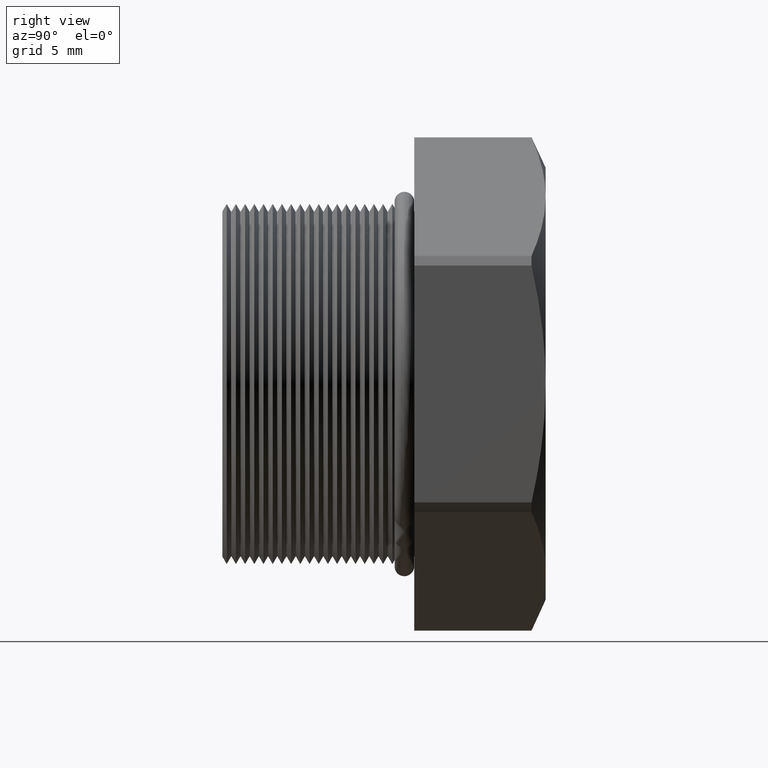
[diagram: clean part render]
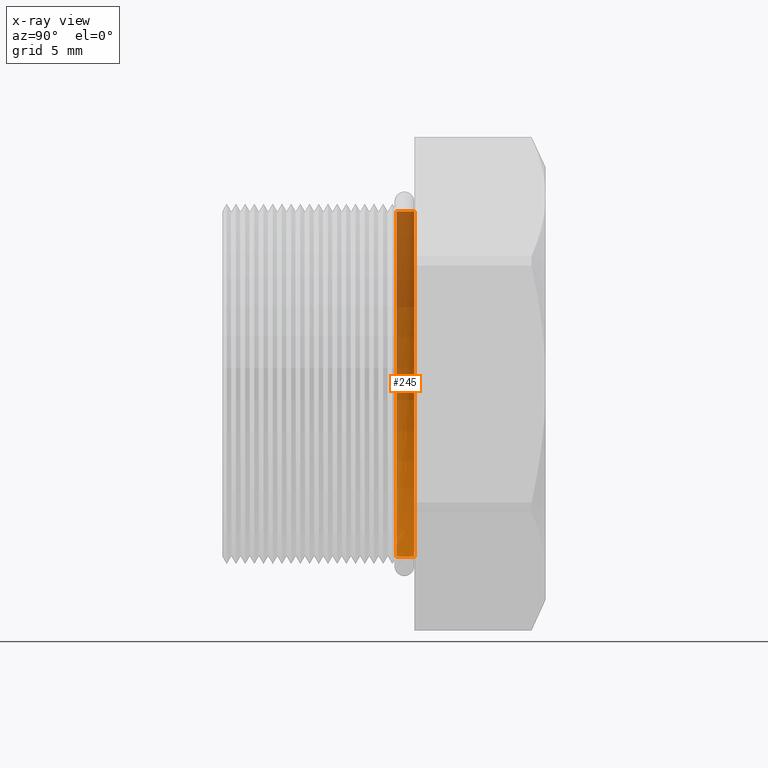
[diagram: x-ray — body ghosted, one internal face saturated and labeled with its STEP entity id]
A machine part, right view, then the same camera in x-ray: the body is ghosted and one INTERNAL B-rep face — a face not visible from any outside direction — is saturated and labeled: STEP entity #245.
In plain terms, the highlighted cylindrical surface (partial cylindrical patch) has radius 8.001 mm, axis along (-0, -1, -0).
Its self-contained STEP definition (entity closure, byte-faithful):
#245 = ADVANCED_FACE ( 'NONE', ( #2263 ), #2262, .T. ) ;
#246 = EDGE_LOOP ( 'NONE', ( #247, #300, #302, #303 ) ) ;
#247 = ORIENTED_EDGE ( 'NONE', *, *, #8404, .F. ) ;
#300 = ORIENTED_EDGE ( 'NONE', *, *, #301, .T. ) ;
#301 = EDGE_CURVE ( 'NONE', #8411, #8408, #2316, .T. ) ;
#302 = ORIENTED_EDGE ( 'NONE', *, *, #8400, .T. ) ;
#303 = ORIENTED_EDGE ( 'NONE', *, *, #304, .F. ) ;
#304 = EDGE_CURVE ( 'NONE', #8473, #8475, #2310, .T. ) ;
#2258 = DIRECTION ( 'NONE',  ( 0.0000000000000000000, 0.0000000000000000000, -1.000000000000000000 ) ) ;
#2259 = DIRECTION ( 'NONE',  ( -0.0000000000000000000, -1.000000000000000000, -0.0000000000000000000 ) ) ;
#2260 = CARTESIAN_POINT ( 'NONE',  ( 0.0000000000000000000, 0.0000000000000000000, 0.0000000000000000000 ) ) ;
#2261 = AXIS2_PLACEMENT_3D ( 'NONE', #2260, #2259, #2258 ) ;
#2262 = CYLINDRICAL_SURFACE ( 'NONE', #2261, 0.3150000000000000000 ) ;
#2263 = FACE_OUTER_BOUND ( 'NONE', #246, .T. ) ;
#2306 = DIRECTION ( 'NONE',  ( 0.0000000000000000000, 0.0000000000000000000, -1.000000000000000000 ) ) ;
#2307 = DIRECTION ( 'NONE',  ( 0.0000000000000000000, -1.000000000000000000, 0.0000000000000000000 ) ) ;
#2308 = CARTESIAN_POINT ( 'NONE',  ( 0.0000000000000000000, 0.1355072448100088900, 0.0000000000000000000 ) ) ;
#2309 = AXIS2_PLACEMENT_3D ( 'NONE', #2308, #2307, #2306 ) ;
#2310 = CIRCLE ( 'NONE', #2309, 0.3150000000000000000 ) ;
#2312 = DIRECTION ( 'NONE',  ( 0.0000000000000000000, 0.0000000000000000000, -1.000000000000000000 ) ) ;
#2313 = DIRECTION ( 'NONE',  ( -0.0000000000000000000, -1.000000000000000000, -0.0000000000000000000 ) ) ;
#2314 = AXIS2_PLACEMENT_3D ( 'NONE', #2321, #2313, #2312 ) ;
#2316 = CIRCLE ( 'NONE', #2314, 0.3150000000000000000 ) ;
#2321 = CARTESIAN_POINT ( 'NONE',  ( 0.0000000000000000000, 0.1675548905829479500, 0.0000000000000000000 ) ) ;
#6228 = LINE ( 'NONE', #6284, #6283 ) ;
#6236 = DIRECTION ( 'NONE',  ( -0.0000000000000000000, -1.000000000000000000, -0.0000000000000000000 ) ) ;
#6237 = VECTOR ( 'NONE', #6236, 39.37007874015748100 ) ;
#6238 = CARTESIAN_POINT ( 'NONE',  ( 0.0000000000000000000, 0.0000000000000000000, -0.3150000000000000000 ) ) ;
#6239 = LINE ( 'NONE', #6238, #6237 ) ;
#6261 = CARTESIAN_POINT ( 'NONE',  ( 3.857637417314162700E-017, 0.1675548905829479500, 0.3150000000000000000 ) ) ;
#6272 = CARTESIAN_POINT ( 'NONE',  ( 0.0000000000000000000, 0.1675548905829479500, -0.3150000000000000000 ) ) ;
#6282 = DIRECTION ( 'NONE',  ( -0.0000000000000000000, -1.000000000000000000, -0.0000000000000000000 ) ) ;
#6283 = VECTOR ( 'NONE', #6282, 39.37007874015748100 ) ;
#6284 = CARTESIAN_POINT ( 'NONE',  ( 3.857637417314162700E-017, 0.0000000000000000000, 0.3150000000000000000 ) ) ;
#6349 = CARTESIAN_POINT ( 'NONE',  ( 0.0000000000000000000, 0.1355072448100088900, -0.3150000000000000000 ) ) ;
#6354 = CARTESIAN_POINT ( 'NONE',  ( 3.857637417314162700E-017, 0.1355072448100088900, 0.3150000000000000000 ) ) ;
#8400 = EDGE_CURVE ( 'NONE', #8408, #8475, #6239, .T. ) ;
#8404 = EDGE_CURVE ( 'NONE', #8411, #8473, #6228, .T. ) ;
#8408 = VERTEX_POINT ( 'NONE', #6272 ) ;
#8411 = VERTEX_POINT ( 'NONE', #6261 ) ;
#8473 = VERTEX_POINT ( 'NONE', #6354 ) ;
#8475 = VERTEX_POINT ( 'NONE', #6349 ) ;